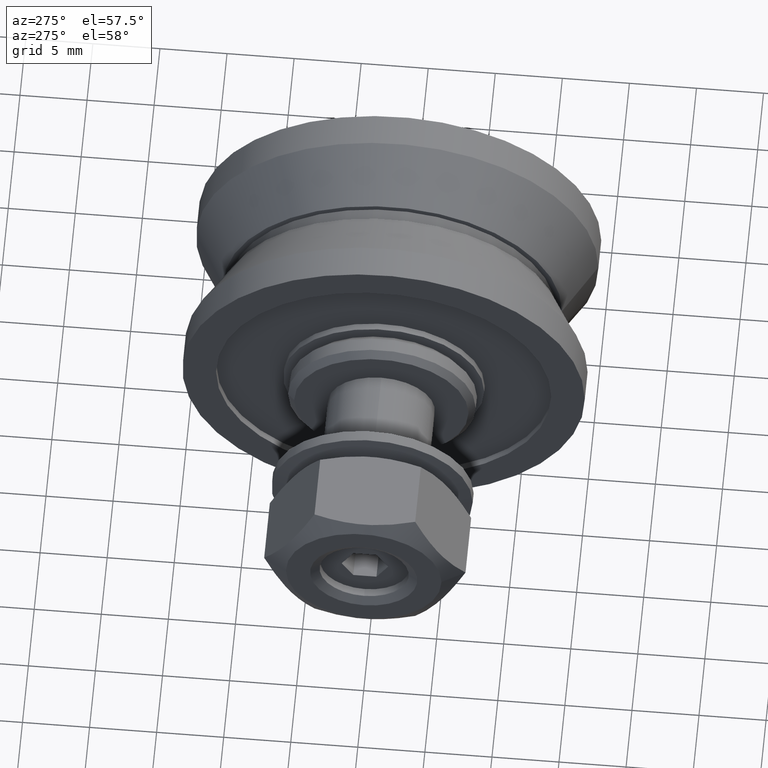
[diagram: clean part render]
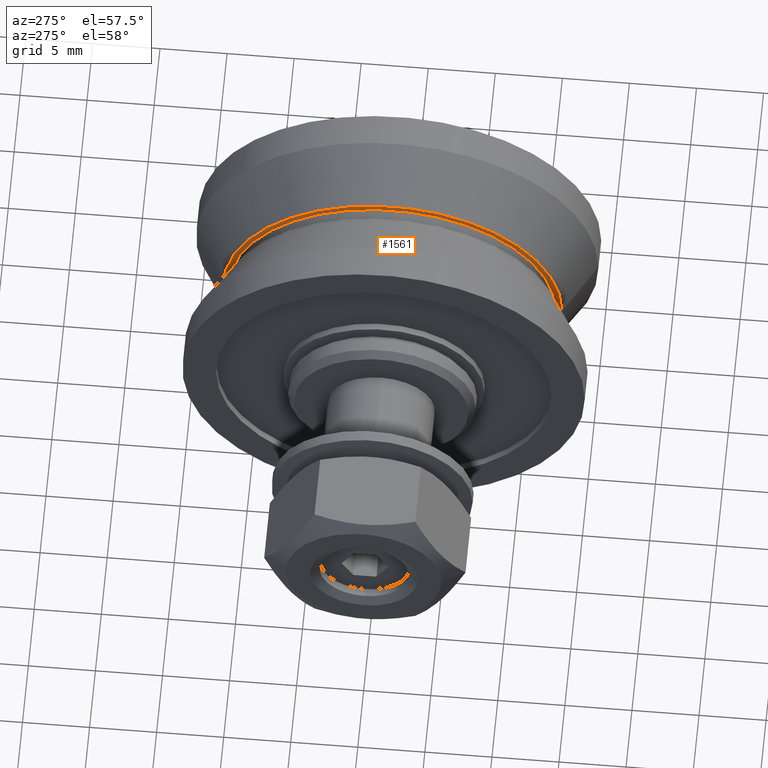
[diagram: same view with one face highlighted and labeled with its STEP entity id]
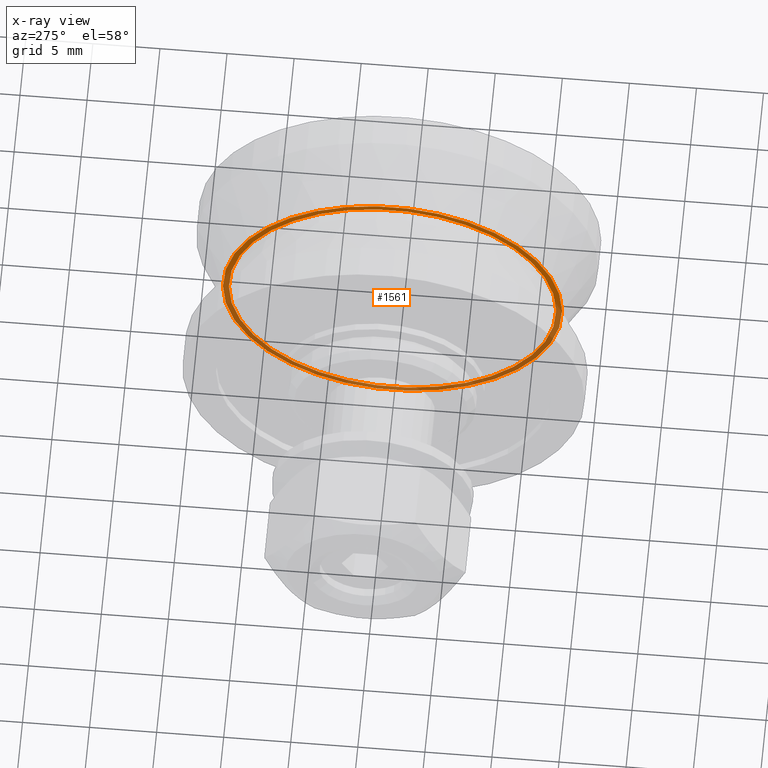
[diagram: x-ray of the same camera — body ghosted, the highlighted face saturated]
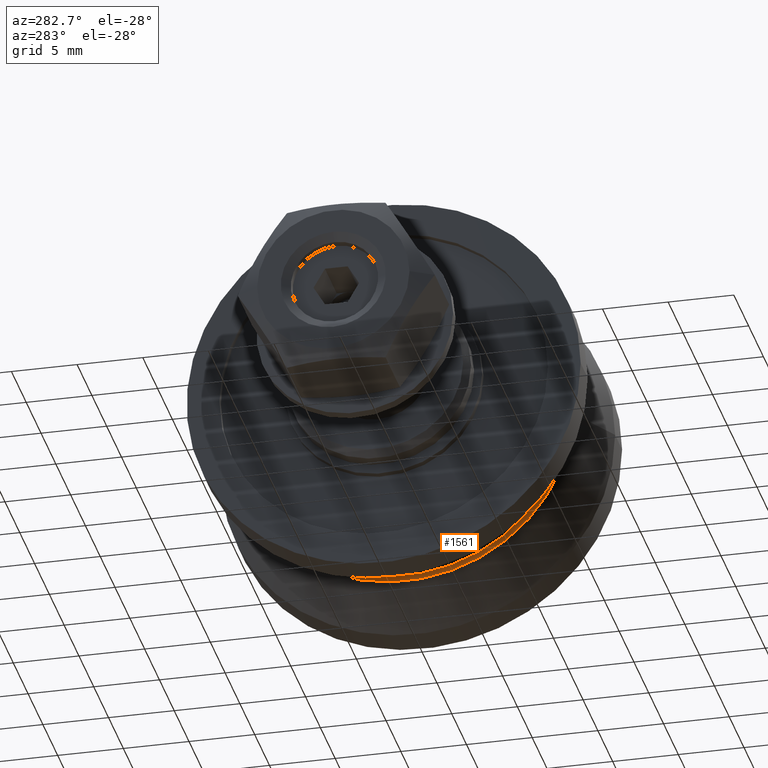
[diagram: same view with one face highlighted and labeled with its STEP entity id]
A machine part, auxiliary view. The second image highlights one B-rep face of the part: STEP entity #1561.
The next image is the same camera in x-ray: the body ghosted, the highlighted face saturated — about 53% of this face is hidden behind the body in this view.
A second angle (auxiliary view) of the same face is appended — the face is thin or edge-on in the first view.
In plain terms, the highlighted planar face has unit normal (-1, 0, 0).
Its self-contained STEP definition (entity closure, byte-faithful):
#72=FACE_BOUND('',#325,.T.);
#112=PLANE('',#1839);
#215=FACE_OUTER_BOUND('',#324,.T.);
#324=EDGE_LOOP('',(#1267));
#325=EDGE_LOOP('',(#1268));
#655=CIRCLE('',#1838,12.644039956158);
#656=CIRCLE('',#1840,12.2);
#769=VERTEX_POINT('',#2681);
#770=VERTEX_POINT('',#2685);
#945=EDGE_CURVE('',#769,#769,#655,.T.);
#947=EDGE_CURVE('',#770,#770,#656,.T.);
#1267=ORIENTED_EDGE('',*,*,#945,.T.);
#1268=ORIENTED_EDGE('',*,*,#947,.F.);
#1561=ADVANCED_FACE('',(#215,#72),#112,.T.);
#1838=AXIS2_PLACEMENT_3D('',#2682,#2192,#2193);
#1839=AXIS2_PLACEMENT_3D('',#2684,#2195,#2196);
#1840=AXIS2_PLACEMENT_3D('',#2686,#2197,#2198);
#2192=DIRECTION('center_axis',(1.,0.,0.));
#2193=DIRECTION('ref_axis',(0.,1.,0.));
#2195=DIRECTION('center_axis',(1.,0.,0.));
#2196=DIRECTION('ref_axis',(0.,0.,-1.));
#2197=DIRECTION('center_axis',(1.,0.,0.));
#2198=DIRECTION('ref_axis',(0.,1.,0.));
#2681=CARTESIAN_POINT('',(-0.550000000000001,-12.644039956158,-1.54844830606002E-15));
#2682=CARTESIAN_POINT('Origin',(-0.55,0.,0.));
#2684=CARTESIAN_POINT('Origin',(-0.55,12.422019978079,0.));
#2685=CARTESIAN_POINT('',(-0.55,-12.2,-1.49406909495977E-15));
#2686=CARTESIAN_POINT('Origin',(-0.55,0.,0.));